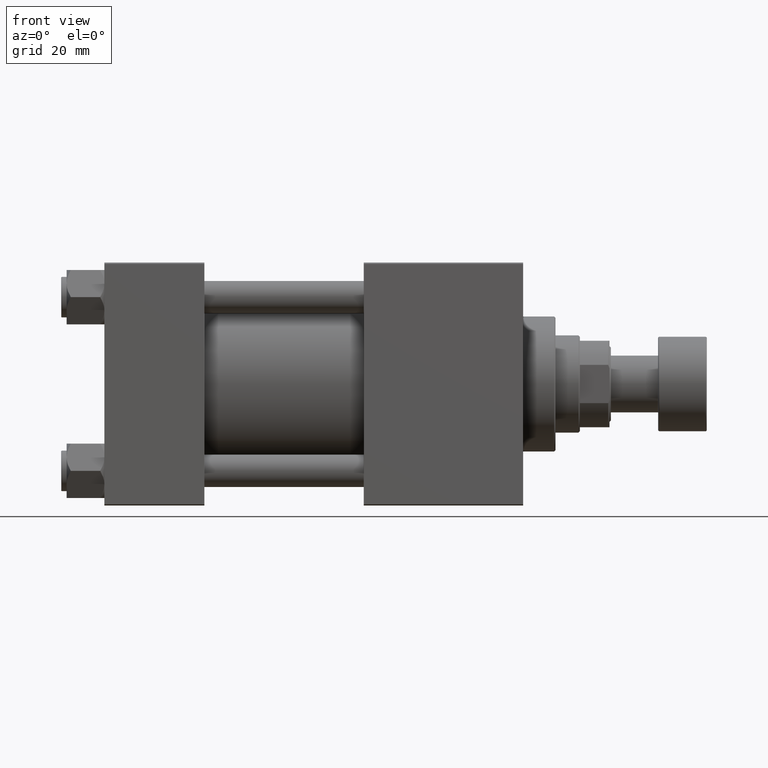
[diagram: clean part render]
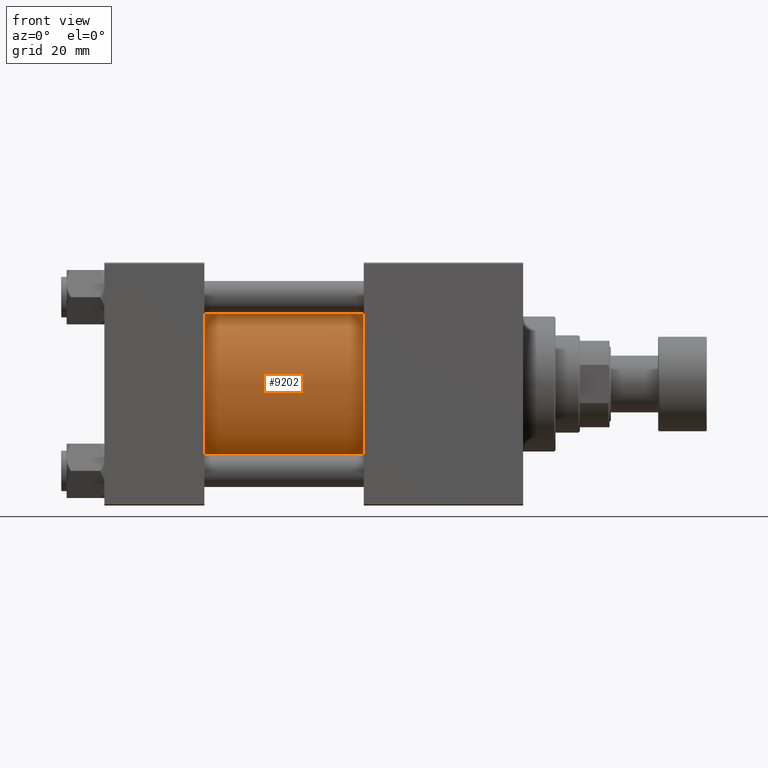
[diagram: same view with one face highlighted and labeled with its STEP entity id]
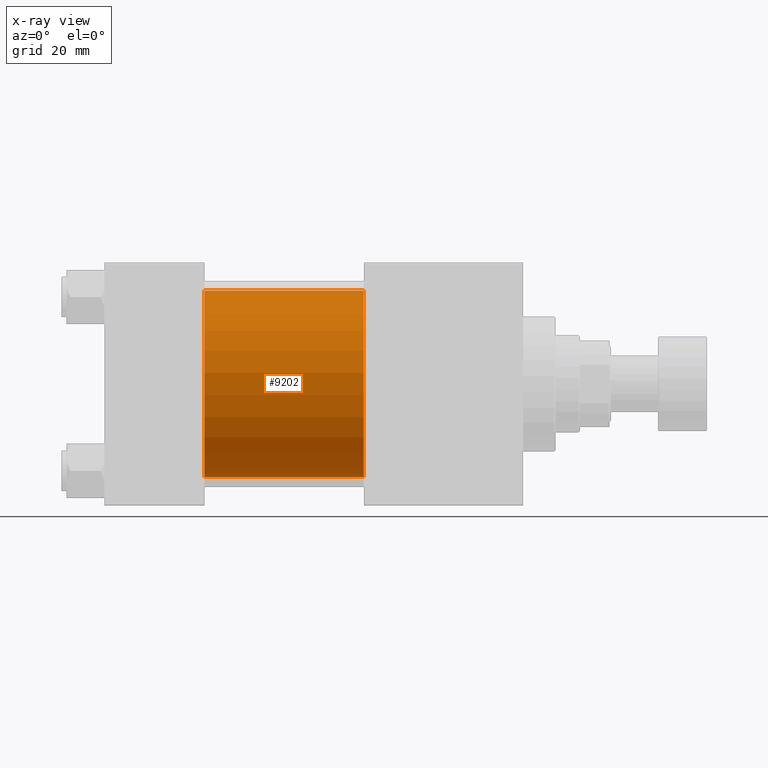
[diagram: x-ray of the same camera — body ghosted, the highlighted face saturated]
A machine part, front view. The second image highlights one B-rep face of the part: STEP entity #9202.
The next image is the same camera in x-ray: the body ghosted, the highlighted face saturated — about 3% of this face is hidden behind the body in this view.
In plain terms, the highlighted cylindrical surface (partial cylindrical patch) has radius 34.5 mm, axis along (-1, -0, -0).
Its self-contained STEP definition (entity closure, byte-faithful):
#4276 = DIRECTION ( 'NONE',  ( 1.000000000000000000, -0.000000000000000000, 0.000000000000000000 ) ) ;
#4534 = CARTESIAN_POINT ( 'NONE',  ( 37.00000000000000000, -2.602085213965210642E-15, 0.000000000000000000 ) ) ;
#4777 = DIRECTION ( 'NONE',  ( 0.000000000000000000, 0.000000000000000000, -1.000000000000000000 ) ) ;
#4881 = AXIS2_PLACEMENT_3D ( 'NONE', #38415, #49706, #46345 ) ;
#5527 = ORIENTED_EDGE ( 'NONE', *, *, #39601, .F. ) ;
#7029 = LINE ( 'NONE', #7530, #20334 ) ;
#7530 = CARTESIAN_POINT ( 'NONE',  ( 96.00000000000000000, 1.622946243093158675E-15, -34.50000000000000000 ) ) ;
#9202 = ADVANCED_FACE ( 'NONE', ( #22295 ), #45599, .T. ) ;
#11375 = VECTOR ( 'NONE', #49579, 1000.000000000000000 ) ;
#12148 = ORIENTED_EDGE ( 'NONE', *, *, #43538, .T. ) ;
#12865 = CIRCLE ( 'NONE', #17796, 34.50000000000000000 ) ;
#13210 = ORIENTED_EDGE ( 'NONE', *, *, #28574, .T. ) ;
#15272 = ORIENTED_EDGE ( 'NONE', *, *, #45325, .F. ) ;
#17579 = VERTEX_POINT ( 'NONE', #22044 ) ;
#17796 = AXIS2_PLACEMENT_3D ( 'NONE', #47046, #43462, #4777 ) ;
#20334 = VECTOR ( 'NONE', #45943, 1000.000000000000000 ) ;
#21921 = VERTEX_POINT ( 'NONE', #24020 ) ;
#22044 = CARTESIAN_POINT ( 'NONE',  ( 96.00000000000000000, -2.602085213965210642E-15, 34.50000000000000000 ) ) ;
#22162 = LINE ( 'NONE', #37772, #11375 ) ;
#22295 = FACE_OUTER_BOUND ( 'NONE', #39013, .T. ) ;
#24020 = CARTESIAN_POINT ( 'NONE',  ( 96.00000000000000000, 1.622946243093158675E-15, -34.50000000000000000 ) ) ;
#28574 = EDGE_CURVE ( 'NONE', #32671, #30881, #49427, .T. ) ;
#30881 = VERTEX_POINT ( 'NONE', #40681 ) ;
#31951 = DIRECTION ( 'NONE',  ( 0.000000000000000000, 0.000000000000000000, 1.000000000000000000 ) ) ;
#32671 = VERTEX_POINT ( 'NONE', #50306 ) ;
#33094 = AXIS2_PLACEMENT_3D ( 'NONE', #4534, #4276, #31951 ) ;
#37772 = CARTESIAN_POINT ( 'NONE',  ( 96.00000000000000000, -2.602085213965210642E-15, 34.50000000000000000 ) ) ;
#38415 = CARTESIAN_POINT ( 'NONE',  ( 96.00000000000000000, -2.602085213965210642E-15, 0.000000000000000000 ) ) ;
#39013 = EDGE_LOOP ( 'NONE', ( #15272, #5527, #12148, #13210 ) ) ;
#39601 = EDGE_CURVE ( 'NONE', #17579, #21921, #12865, .T. ) ;
#40681 = CARTESIAN_POINT ( 'NONE',  ( 37.00000000000000000, 1.622946243093158675E-15, -34.50000000000000000 ) ) ;
#43462 = DIRECTION ( 'NONE',  ( 1.000000000000000000, 0.000000000000000000, 0.000000000000000000 ) ) ;
#43538 = EDGE_CURVE ( 'NONE', #17579, #32671, #22162, .T. ) ;
#45325 = EDGE_CURVE ( 'NONE', #21921, #30881, #7029, .T. ) ;
#45599 = CYLINDRICAL_SURFACE ( 'NONE', #4881, 34.50000000000000000 ) ;
#45943 = DIRECTION ( 'NONE',  ( -1.000000000000000000, -0.000000000000000000, -0.000000000000000000 ) ) ;
#46345 = DIRECTION ( 'NONE',  ( 0.000000000000000000, 0.000000000000000000, 1.000000000000000000 ) ) ;
#47046 = CARTESIAN_POINT ( 'NONE',  ( 96.00000000000000000, -2.602085213965210642E-15, 0.000000000000000000 ) ) ;
#49427 = CIRCLE ( 'NONE', #33094, 34.50000000000000000 ) ;
#49579 = DIRECTION ( 'NONE',  ( -1.000000000000000000, -0.000000000000000000, -0.000000000000000000 ) ) ;
#49706 = DIRECTION ( 'NONE',  ( -1.000000000000000000, -0.000000000000000000, -0.000000000000000000 ) ) ;
#50306 = CARTESIAN_POINT ( 'NONE',  ( 37.00000000000000000, -2.602085213965210642E-15, 34.50000000000000000 ) ) ;